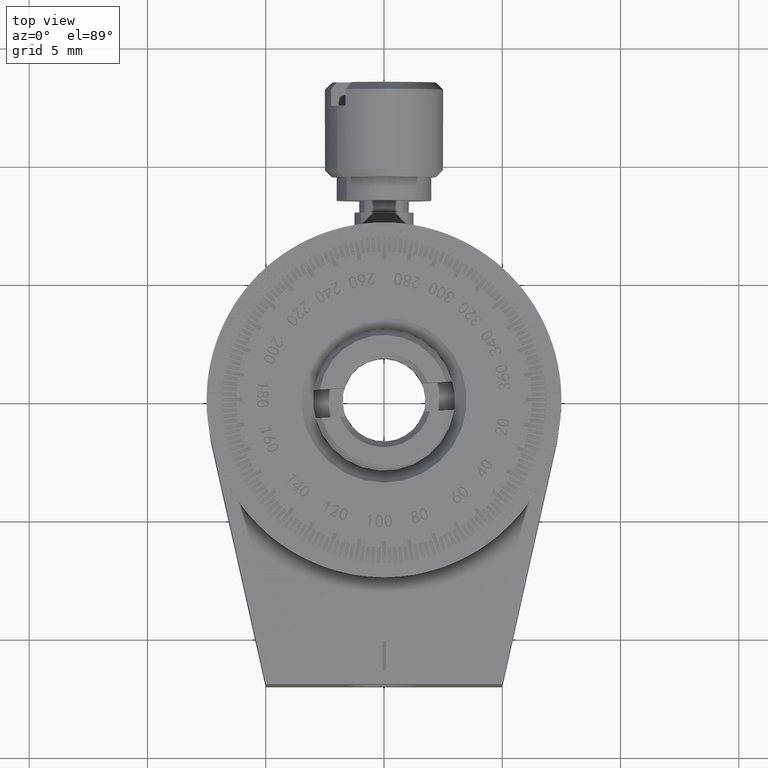
[diagram: clean part render]
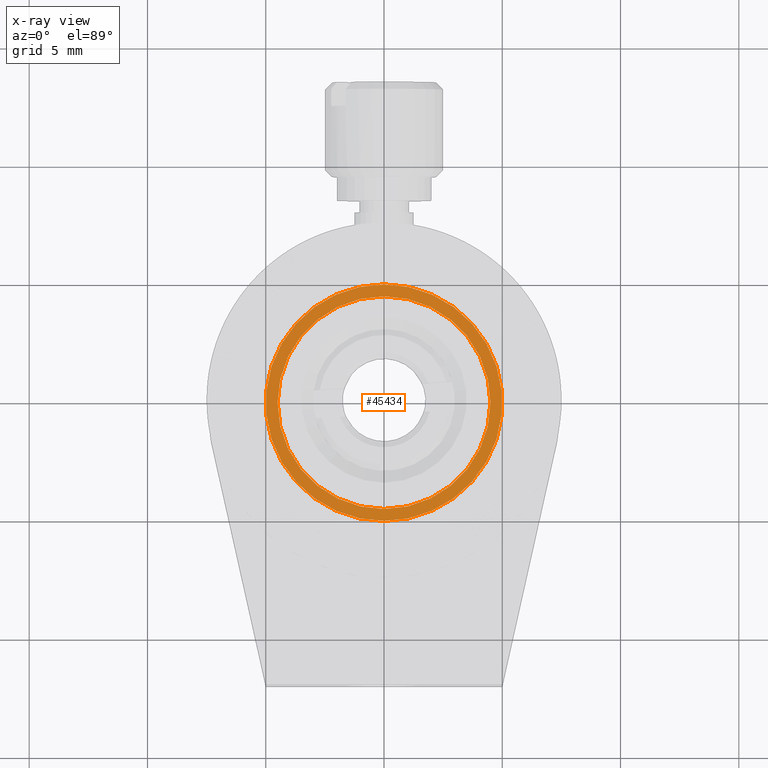
[diagram: x-ray — body ghosted, one internal face saturated and labeled with its STEP entity id]
A machine part, top view, then the same camera in x-ray: the body is ghosted and one INTERNAL B-rep face — a face not visible from any outside direction — is saturated and labeled: STEP entity #45434.
In plain terms, the highlighted planar face has unit normal (0, -0, -1).
Its self-contained STEP definition (entity closure, byte-faithful):
#1019 = CARTESIAN_POINT ( 'NONE',  ( 0.000000000000000000, -6.000000000000000000, 0.000000000000000000 ) ) ;
#1553 = EDGE_CURVE ( 'NONE', #36787, #10079, #23603, .T. ) ;
#2291 = CIRCLE ( 'NONE', #32014, 4.500000000000000000 ) ;
#3951 = EDGE_CURVE ( 'NONE', #41844, #13990, #23425, .T. ) ;
#4201 = ORIENTED_EDGE ( 'NONE', *, *, #22323, .F. ) ;
#9698 = DIRECTION ( 'NONE',  ( 0.000000000000000000, 0.000000000000000000, 1.000000000000000000 ) ) ;
#10079 = VERTEX_POINT ( 'NONE', #43358 ) ;
#13094 = DIRECTION ( 'NONE',  ( 0.000000000000000000, 0.000000000000000000, -1.000000000000000000 ) ) ;
#13990 = VERTEX_POINT ( 'NONE', #27978 ) ;
#16277 = AXIS2_PLACEMENT_3D ( 'NONE', #25601, #26220, #45771 ) ;
#16525 = DIRECTION ( 'NONE',  ( 0.000000000000000000, 0.000000000000000000, -1.000000000000000000 ) ) ;
#20538 = DIRECTION ( 'NONE',  ( 0.000000000000000000, -1.000000000000000000, 0.000000000000000000 ) ) ;
#22323 = EDGE_CURVE ( 'NONE', #10079, #36787, #58564, .T. ) ;
#23425 = CIRCLE ( 'NONE', #16277, 4.500000000000000000 ) ;
#23603 = CIRCLE ( 'NONE', #59476, 5.000000000000000000 ) ;
#23610 = AXIS2_PLACEMENT_3D ( 'NONE', #44900, #20538, #54866 ) ;
#25601 = CARTESIAN_POINT ( 'NONE',  ( 0.000000000000000000, -6.000000000000000000, 0.000000000000000000 ) ) ;
#26220 = DIRECTION ( 'NONE',  ( -0.000000000000000000, 1.000000000000000000, -0.000000000000000000 ) ) ;
#27978 = CARTESIAN_POINT ( 'NONE',  ( 5.510910596163088569E-16, -6.000000000000000000, -4.500000000000000000 ) ) ;
#32014 = AXIS2_PLACEMENT_3D ( 'NONE', #1019, #35043, #9698 ) ;
#34174 = ORIENTED_EDGE ( 'NONE', *, *, #3951, .F. ) ;
#35043 = DIRECTION ( 'NONE',  ( -0.000000000000000000, 1.000000000000000000, -0.000000000000000000 ) ) ;
#35299 = PLANE ( 'NONE',  #23610 ) ;
#35770 = EDGE_CURVE ( 'NONE', #13990, #41844, #2291, .T. ) ;
#36787 = VERTEX_POINT ( 'NONE', #54544 ) ;
#37015 = AXIS2_PLACEMENT_3D ( 'NONE', #37480, #57062, #13094 ) ;
#37480 = CARTESIAN_POINT ( 'NONE',  ( 0.000000000000000000, -6.000000000000000000, 0.000000000000000000 ) ) ;
#40893 = CARTESIAN_POINT ( 'NONE',  ( 0.000000000000000000, -6.000000000000000000, 0.000000000000000000 ) ) ;
#41024 = FACE_OUTER_BOUND ( 'NONE', #49682, .T. ) ;
#41844 = VERTEX_POINT ( 'NONE', #55371 ) ;
#43358 = CARTESIAN_POINT ( 'NONE',  ( 0.000000000000000000, -6.000000000000000000, 5.000000000000000000 ) ) ;
#44791 = EDGE_LOOP ( 'NONE', ( #34174, #44857 ) ) ;
#44857 = ORIENTED_EDGE ( 'NONE', *, *, #35770, .F. ) ;
#44900 = CARTESIAN_POINT ( 'NONE',  ( -5.500000000000000888, -6.000000000000000000, 0.000000000000000000 ) ) ;
#45434 = ADVANCED_FACE ( 'NONE', ( #50340, #41024 ), #35299, .F. ) ;
#45771 = DIRECTION ( 'NONE',  ( 0.000000000000000000, 0.000000000000000000, 1.000000000000000000 ) ) ;
#49621 = ORIENTED_EDGE ( 'NONE', *, *, #1553, .F. ) ;
#49682 = EDGE_LOOP ( 'NONE', ( #4201, #49621 ) ) ;
#50340 = FACE_BOUND ( 'NONE', #44791, .T. ) ;
#54544 = CARTESIAN_POINT ( 'NONE',  ( 6.123233995736766282E-16, -6.000000000000000000, -5.000000000000000000 ) ) ;
#54866 = DIRECTION ( 'NONE',  ( 0.000000000000000000, -0.000000000000000000, -1.000000000000000000 ) ) ;
#55371 = CARTESIAN_POINT ( 'NONE',  ( 0.000000000000000000, -6.000000000000000000, 4.500000000000000000 ) ) ;
#57062 = DIRECTION ( 'NONE',  ( 0.000000000000000000, -1.000000000000000000, 0.000000000000000000 ) ) ;
#58564 = CIRCLE ( 'NONE', #37015, 5.000000000000000000 ) ;
#59476 = AXIS2_PLACEMENT_3D ( 'NONE', #40893, #60477, #16525 ) ;
#60477 = DIRECTION ( 'NONE',  ( 0.000000000000000000, -1.000000000000000000, 0.000000000000000000 ) ) ;